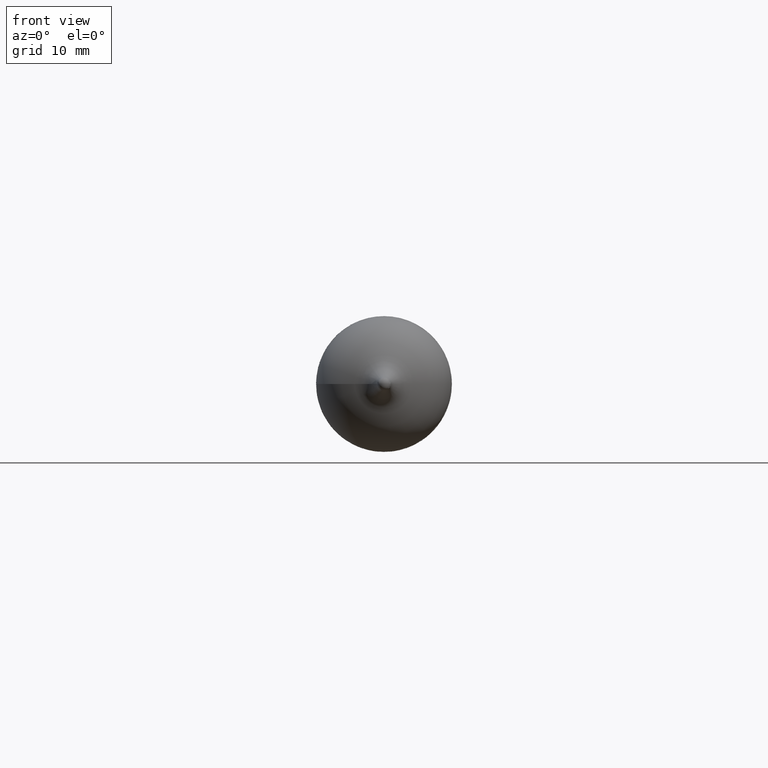
[diagram: clean part render]
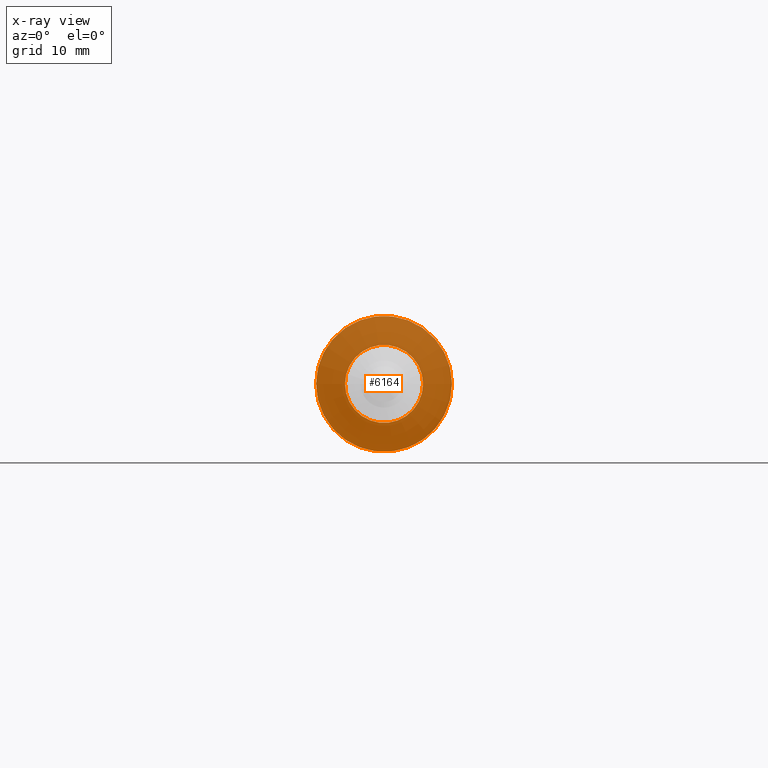
[diagram: x-ray — body ghosted, one internal face saturated and labeled with its STEP entity id]
A machine part, front view, then the same camera in x-ray: the body is ghosted and one INTERNAL B-rep face — a face not visible from any outside direction — is saturated and labeled: STEP entity #6164.
In plain terms, the highlighted planar face has unit normal (-0, -1, 0).
Its self-contained STEP definition (entity closure, byte-faithful):
#217 = EDGE_LOOP ( 'NONE', ( #5880 ) ) ;
#533 = AXIS2_PLACEMENT_3D ( 'NONE', #5399, #8370, #6399 ) ;
#753 = EDGE_CURVE ( 'NONE', #9067, #9067, #2299, .T. ) ;
#2299 = CIRCLE ( 'NONE', #9020, 5.750000000000003553 ) ;
#2603 = CARTESIAN_POINT ( 'NONE',  ( 1.942234156920327178E-32, 3.341832790893626763E-16, 0.000000000000000000 ) ) ;
#2778 = CARTESIAN_POINT ( 'NONE',  ( -10.00000000000000533, 5.500532233458459942E-16, 0.000000000000000000 ) ) ;
#3110 = FACE_BOUND ( 'NONE', #217, .T. ) ;
#3167 = DIRECTION ( 'NONE',  ( 1.000000000000000000, -5.811883114597608921E-17, 0.000000000000000000 ) ) ;
#3212 = PLANE ( 'NONE',  #4189 ) ;
#4189 = AXIS2_PLACEMENT_3D ( 'NONE', #7981, #5133, #3167 ) ;
#5133 = DIRECTION ( 'NONE',  ( -5.811883114597608921E-17, -1.000000000000000000, 0.000000000000000000 ) ) ;
#5399 = CARTESIAN_POINT ( 'NONE',  ( -1.809534928807725045E-33, -3.113508811391521225E-17, 0.000000000000000000 ) ) ;
#5760 = EDGE_CURVE ( 'NONE', #9853, #9853, #12041, .T. ) ;
#5880 = ORIENTED_EDGE ( 'NONE', *, *, #753, .F. ) ;
#5966 = ORIENTED_EDGE ( 'NONE', *, *, #5760, .T. ) ;
#6164 = ADVANCED_FACE ( 'NONE', ( #3110, #10045 ), #3212, .F. ) ;
#6399 = DIRECTION ( 'NONE',  ( -1.000000000000000000, 5.811883114597608921E-17, 0.000000000000000000 ) ) ;
#6649 = CARTESIAN_POINT ( 'NONE',  ( -5.750000000000003553, 6.683665581787253526E-16, 0.000000000000000000 ) ) ;
#7981 = CARTESIAN_POINT ( 'NONE',  ( 10.00000000000000533, -4.296642159720375083E-16, 0.000000000000000000 ) ) ;
#8370 = DIRECTION ( 'NONE',  ( 5.811883114597608921E-17, 1.000000000000000000, -0.000000000000000000 ) ) ;
#8515 = DIRECTION ( 'NONE',  ( -1.000000000000000000, 5.811883114597607689E-17, 0.000000000000000000 ) ) ;
#9020 = AXIS2_PLACEMENT_3D ( 'NONE', #2603, #12387, #8515 ) ;
#9067 = VERTEX_POINT ( 'NONE', #6649 ) ;
#9853 = VERTEX_POINT ( 'NONE', #2778 ) ;
#10045 = FACE_OUTER_BOUND ( 'NONE', #11385, .T. ) ;
#11385 = EDGE_LOOP ( 'NONE', ( #5966 ) ) ;
#12041 = CIRCLE ( 'NONE', #533, 10.00000000000000533 ) ;
#12387 = DIRECTION ( 'NONE',  ( 5.811883114597608921E-17, 1.000000000000000000, -0.000000000000000000 ) ) ;